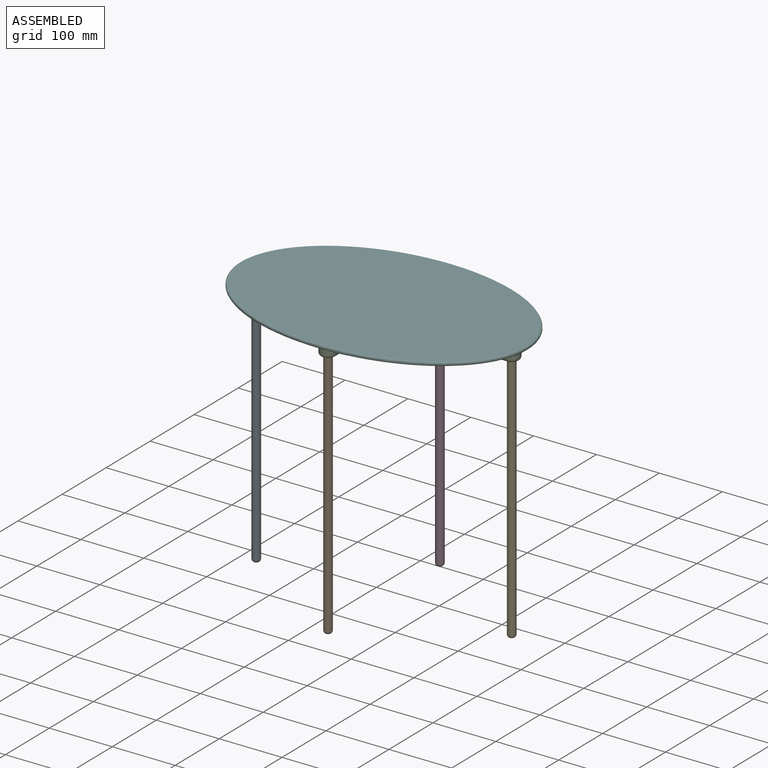
[diagram: assembled view]
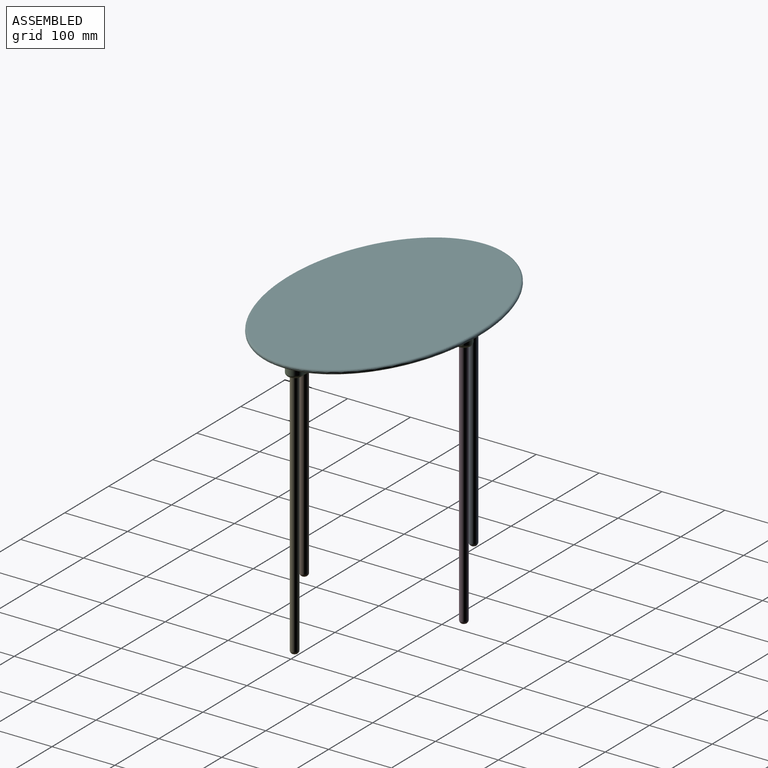
[diagram: assembled view, second angle]
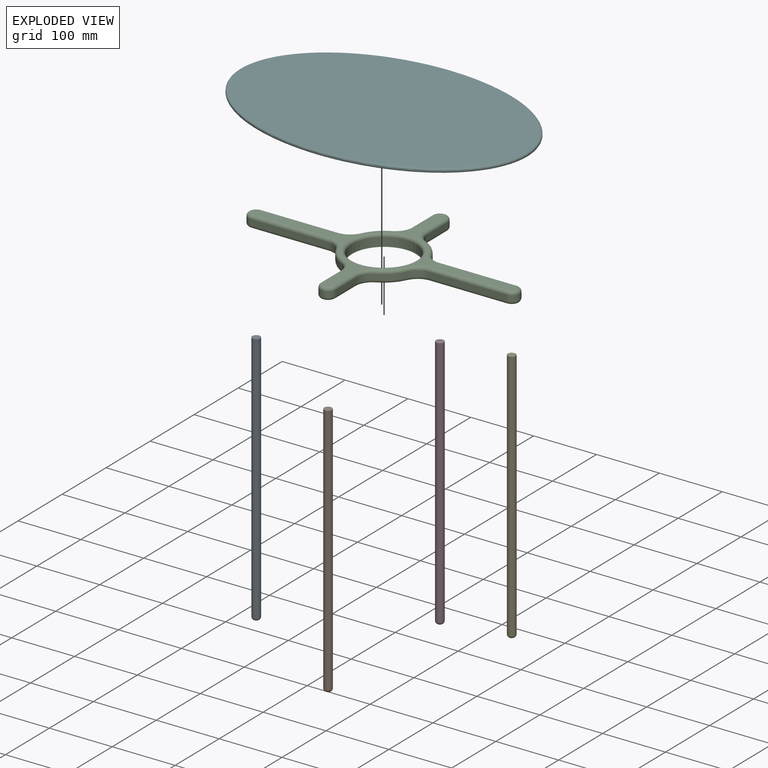
[diagram: exploded view]
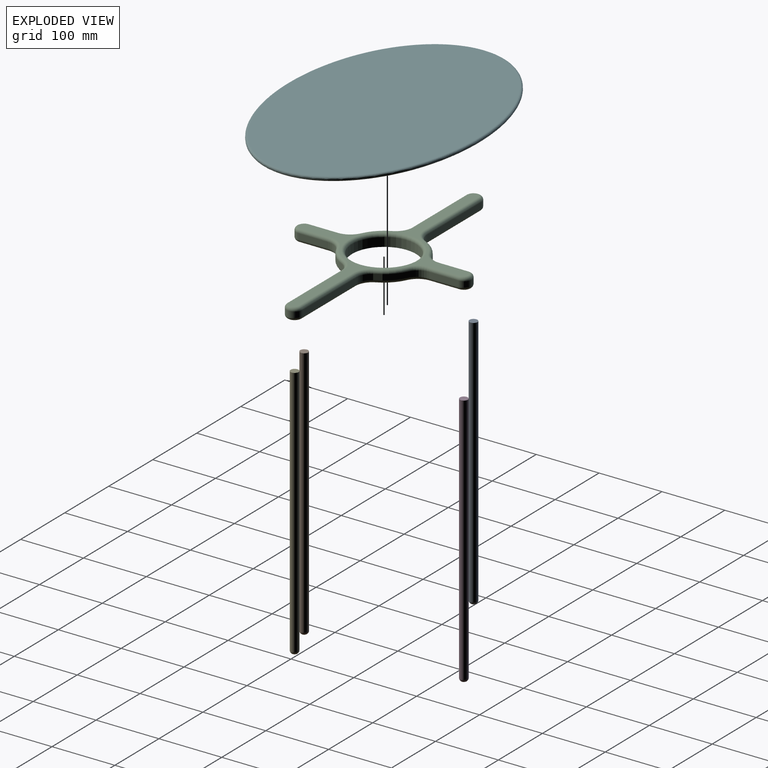
[diagram: exploded view, second angle]
ASSEMBLY  parts=6 mates=5
PART A: 4 faces, bbox 12.7x12.7x406.4 mm
  f0: cylinder r=6.35mm len=401.32mm, axis (0,0,-1), area 16012mm2, adj f1,f3
  f1: plane 12.7x12.7mm, normal (0,0,1), area 126.7mm2, adj f0
  f2: plane 2.54x2.54mm, normal (0,0,-1), area 5.1mm2, adj f3
  f3: torus R=1.27mm, axis (0,0,1), area 225.8mm2, adj f0,f2
PART B: same geometry as A
PART C: 84 faces, bbox 433.9x281.5x19.1 mm
  f0: plane 122.88x8.89mm, normal (0,1,0), area 1092.4mm2, adj f15,f20,f58,f64
  f1: cylinder r=63.5mm len=30.16mm, axis (0,0,-1), area 386.7mm2, adj f20,f24,f54,f68
  f2: plane 46.68x8.89mm, normal (1,0,0), area 415mm2, adj f3,f24,f50,f72
  f3: cylinder r=12.7mm len=25.4mm, axis (0,0,-1), area 354.7mm2, adj f2,f4,f48,f74
  f4: plane 46.68x8.89mm, normal (-1,0,0), area 415mm2, adj f3,f25,f46,f76
  f5: cylinder r=63.5mm len=30.16mm, axis (0,0,-1), area 386.7mm2, adj f25,f26,f42,f80
  f6: plane 122.88x8.89mm, normal (0,1,0), area 1092.4mm2, adj f7,f26,f38,f81
  f7: cylinder r=12.7mm len=25.4mm, axis (0,0,-1), area 354.7mm2, adj f6,f8,f36,f79
  f8: plane 122.88x8.89mm, normal (0,-1,0), area 1092.4mm2, adj f7,f21,f35,f77
  f9: cylinder r=63.5mm len=30.16mm, axis (0,0,-1), area 386.7mm2, adj f21,f22,f39,f73
  f10: plane 46.68x8.89mm, normal (-1,0,0), area 415mm2, adj f11,f22,f43,f69
  f11: cylinder r=12.7mm len=25.4mm, axis (0,0,-1), area 354.7mm2, adj f10,f12,f45,f67
  f12: plane 46.68x8.89mm, normal (1,0,0), area 415mm2, adj f11,f23,f47,f65
  f13: cylinder r=63.5mm len=30.16mm, axis (0,0,-1), area 386.7mm2, adj f19,f23,f51,f61
  f14: plane 122.88x8.89mm, normal (0,-1,0), area 1092.4mm2, adj f15,f19,f55,f60
  f15: cylinder r=12.7mm len=25.4mm, axis (0,0,-1), area 354.7mm2, adj f0,f14,f57,f62
  f16: cylinder r=50.8mm len=101.6mm, axis (0,0,-1), area 4459mm2, adj f18,f83
  f17: plane 421.64x269.24mm, normal (0,0,1), area 8448.2mm2, adj f59,f60,f61,f62,f63,f64,f65,f66
  f18: plane 421.64x269.24mm, normal (0,0,-1), area 9644.1mm2, adj f16,f27,f29,f31,f33,f35,f36,f37
  f19: cylinder r=25.4mm len=22.95mm, axis (0,0,-1), area 254.7mm2, adj f13,f14,f53,f59
  f20: cylinder r=25.4mm len=22.95mm, axis (0,0,-1), area 254.7mm2, adj f0,f1,f56,f66
  f21: cylinder r=25.4mm len=22.95mm, axis (0,0,-1), area 254.7mm2, adj f8,f9,f37,f75
  f22: cylinder r=25.4mm len=22.95mm, axis (0,0,-1), area 254.7mm2, adj f9,f10,f41,f71
  f23: cylinder r=25.4mm len=22.95mm, axis (0,0,-1), area 254.7mm2, adj f12,f13,f49,f63
  f24: cylinder r=25.4mm len=22.95mm, axis (0,0,-1), area 254.7mm2, adj f1,f2,f52,f70
  f25: cylinder r=25.4mm len=22.95mm, axis (0,0,-1), area 254.7mm2, adj f4,f5,f44,f78
  f26: cylinder r=25.4mm len=22.95mm, axis (0,0,-1), area 254.7mm2, adj f5,f6,f40,f82
  f27: cylinder r=6.35mm len=12.7mm, axis (0,0,-1), area 253.4mm2, adj f18,f28
  f28: plane 12.7x12.7mm, normal (0,0,-1), area 126.7mm2, adj f27
  f29: cylinder r=6.35mm len=12.7mm, axis (0,0,-1), area 253.4mm2, adj f18,f30
  f30: plane 12.7x12.7mm, normal (0,0,-1), area 126.7mm2, adj f29
  f31: cylinder r=6.35mm len=12.7mm, axis (0,0,-1), area 253.4mm2, adj f18,f32
  f32: plane 12.7x12.7mm, normal (0,0,-1), area 126.7mm2, adj f31
  f33: cylinder r=6.35mm len=12.7mm, axis (0,0,-1), area 253.4mm2, adj f18,f34
  f34: plane 12.7x12.7mm, normal (0,0,-1), area 126.7mm2, adj f33
  f35: cylinder r=5.08mm len=122.88mm, axis (1,0,0), area 980.5mm2, adj f8,f18,f36,f37
  f36: torus R=7.62mm, axis (0,0,1), area 272.1mm2, adj f7,f18,f35,f38
  f37: torus R=30.48mm, axis (0,0,1), area 245.2mm2, adj f18,f21,f35,f39
  f38: cylinder r=5.08mm len=122.88mm, axis (-1,0,0), area 980.5mm2, adj f6,f18,f36,f40
  f39: torus R=58.42mm, axis (0,0,1), area 337mm2, adj f9,f18,f37,f41
  f40: torus R=30.48mm, axis (0,0,1), area 245.2mm2, adj f18,f26,f38,f42
  f41: torus R=30.48mm, axis (0,0,1), area 245.2mm2, adj f18,f22,f39,f43
  f42: torus R=58.42mm, axis (0,0,1), area 337mm2, adj f5,f18,f40,f44
  f43: cylinder r=5.08mm len=46.68mm, axis (0,-1,0), area 372.5mm2, adj f10,f18,f41,f45
  f44: torus R=30.48mm, axis (0,0,1), area 245.2mm2, adj f18,f25,f42,f46
  f45: torus R=7.62mm, axis (0,0,1), area 272.1mm2, adj f11,f18,f43,f47
  f46: cylinder r=5.08mm len=46.68mm, axis (0,-1,0), area 372.5mm2, adj f4,f18,f44,f48
  f47: cylinder r=5.08mm len=46.68mm, axis (0,1,0), area 372.5mm2, adj f12,f18,f45,f49
  f48: torus R=7.62mm, axis (0,0,1), area 272.1mm2, adj f3,f18,f46,f50
  f49: torus R=30.48mm, axis (0,0,1), area 245.2mm2, adj f18,f23,f47,f51
  f50: cylinder r=5.08mm len=46.68mm, axis (0,1,0), area 372.5mm2, adj f2,f18,f48,f52
  f51: torus R=58.42mm, axis (0,0,1), area 337mm2, adj f13,f18,f49,f53
  f52: torus R=30.48mm, axis (0,0,1), area 245.2mm2, adj f18,f24,f50,f54
  f53: torus R=30.48mm, axis (0,0,1), area 245.2mm2, adj f18,f19,f51,f55
  f54: torus R=58.42mm, axis (0,0,1), area 337mm2, adj f1,f18,f52,f56
  f55: cylinder r=5.08mm len=122.88mm, axis (1,0,0), area 980.5mm2, adj f14,f18,f53,f57
  f56: torus R=30.48mm, axis (0,0,1), area 245.2mm2, adj f18,f20,f54,f58
  f57: torus R=7.62mm, axis (0,0,1), area 272.1mm2, adj f15,f18,f55,f58
  f58: cylinder r=5.08mm len=122.88mm, axis (-1,0,0), area 980.5mm2, adj f0,f18,f56,f57
  f59: torus R=30.48mm, axis (0,0,1), area 245.2mm2, adj f17,f19,f60,f61
  f60: cylinder r=5.08mm len=122.88mm, axis (-1,0,0), area 980.5mm2, adj f14,f17,f59,f62
  f61: torus R=58.42mm, axis (0,0,1), area 337mm2, adj f13,f17,f59,f63
  f62: torus R=7.62mm, axis (0,0,1), area 272.1mm2, adj f15,f17,f60,f64
  f63: torus R=30.48mm, axis (0,0,1), area 245.2mm2, adj f17,f23,f61,f65
  f64: cylinder r=5.08mm len=122.88mm, axis (1,0,0), area 980.5mm2, adj f0,f17,f62,f66
  f65: cylinder r=5.08mm len=46.68mm, axis (0,-1,0), area 372.5mm2, adj f12,f17,f63,f67
  f66: torus R=30.48mm, axis (0,0,1), area 245.2mm2, adj f17,f20,f64,f68
  f67: torus R=7.62mm, axis (0,0,1), area 272.1mm2, adj f11,f17,f65,f69
  f68: torus R=58.42mm, axis (0,0,1), area 337mm2, adj f1,f17,f66,f70
  f69: cylinder r=5.08mm len=46.68mm, axis (0,1,0), area 372.5mm2, adj f10,f17,f67,f71
  f70: torus R=30.48mm, axis (0,0,1), area 245.2mm2, adj f17,f24,f68,f72
  f71: torus R=30.48mm, axis (0,0,1), area 245.2mm2, adj f17,f22,f69,f73
  f72: cylinder r=5.08mm len=46.68mm, axis (0,-1,0), area 372.5mm2, adj f2,f17,f70,f74
  f73: torus R=58.42mm, axis (0,0,1), area 337mm2, adj f9,f17,f71,f75
  f74: torus R=7.62mm, axis (0,0,1), area 272.1mm2, adj f3,f17,f72,f76
  f75: torus R=30.48mm, axis (0,0,1), area 245.2mm2, adj f17,f21,f73,f77
  f76: cylinder r=5.08mm len=46.68mm, axis (0,1,0), area 372.5mm2, adj f4,f17,f74,f78
  f77: cylinder r=5.08mm len=122.88mm, axis (-1,0,0), area 980.5mm2, adj f8,f17,f75,f79
  f78: torus R=30.48mm, axis (0,0,1), area 245.2mm2, adj f17,f25,f76,f80
  f79: torus R=7.62mm, axis (0,0,1), area 272.1mm2, adj f7,f17,f77,f81
  f80: torus R=58.42mm, axis (0,0,1), area 337mm2, adj f5,f17,f78,f82
  f81: cylinder r=5.08mm len=122.88mm, axis (1,0,0), area 980.5mm2, adj f6,f17,f79,f82
  f82: torus R=30.48mm, axis (0,0,1), area 245.2mm2, adj f17,f26,f80,f81
  f83: torus R=55.88mm, axis (0,0,1), area 2639.5mm2, adj f16,f17
PART D: same geometry as A
PART E: same geometry as A
PART F: 4 faces, bbox 457.2x304.8x6.4 mm
  f0: plane 450.87x298.47mm, normal (0,0,1), area 105740.7mm2, adj f2
  f1: plane 450.87x298.47mm, normal (0,0,-1), area 105740.7mm2, adj f3
  f2: bspline ~457.24x304.82mm, area 5994.2mm2, adj f0,f3
  f3: bspline ~457.24x304.82mm, area 5994.2mm2, adj f1,f2
PLACE A t=(-257.9,9.82,-347.47)mm
PLACE B t=(-54.7,-117.18,-347.47)mm
PLACE C t=(-54.7,9.82,52.58)mm
PLACE D t=(-54.7,136.82,-347.47)mm
PLACE E t=(148.5,9.82,-347.47)mm
PLACE F t=(-54.7,9.82,71.63)mm
MATE planar D.f0 <-> C.f29  axis (0,0,1) through (-54.7,136.82,58.93)mm
MATE planar F.f1 <-> C.f1  axis (0,0,-1) through (-54.7,9.82,71.63)mm
MATE planar B.f0 <-> C.f11  axis (0,0,1) through (-54.7,-117.18,58.93)mm
MATE planar A.f0 <-> C.f7  axis (0,0,1) through (-257.9,9.82,58.93)mm
MATE planar E.f0 <-> C.f27  axis (0,0,1) through (148.5,9.82,58.93)mm
